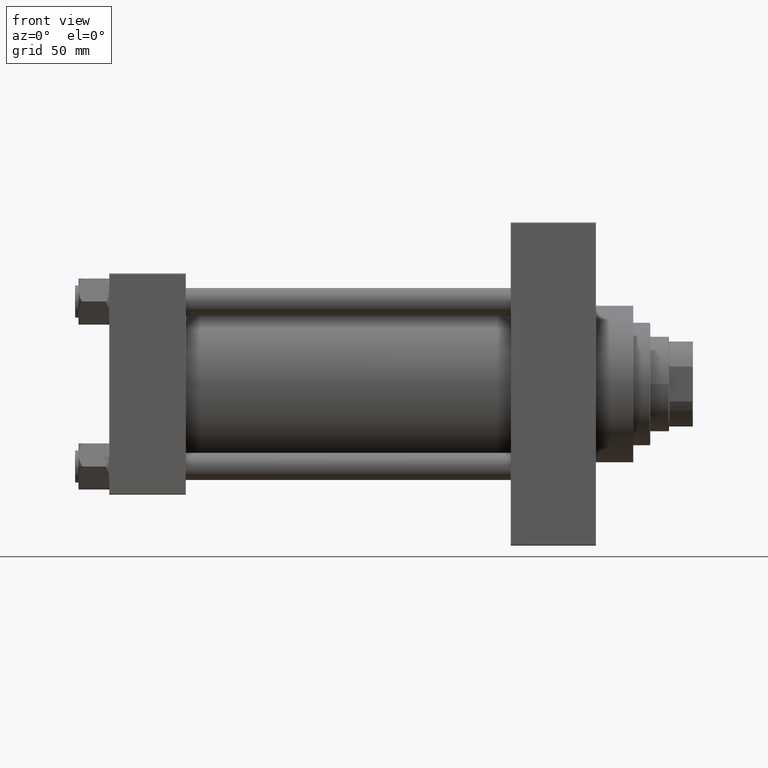
[diagram: clean part render]
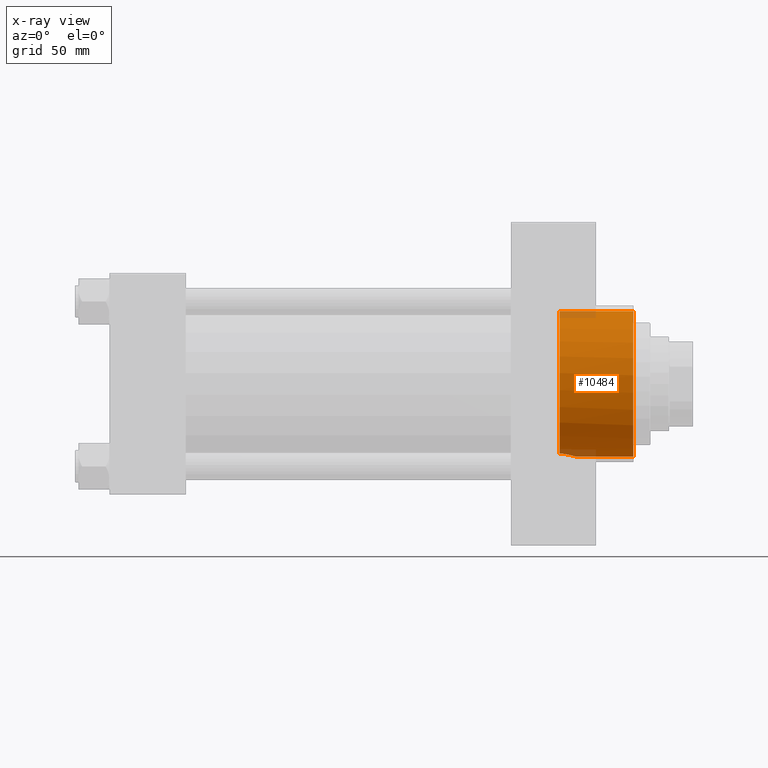
[diagram: x-ray — body ghosted, one internal face saturated and labeled with its STEP entity id]
A machine part, front view, then the same camera in x-ray: the body is ghosted and one INTERNAL B-rep face — a face not visible from any outside direction — is saturated and labeled: STEP entity #10484.
In plain terms, the highlighted cylindrical surface (partial cylindrical patch) has radius 42.75 mm, axis along (1, 0, 0).
Its self-contained STEP definition (entity closure, byte-faithful):
#338 = DIRECTION ( 'NONE',  ( 1.000000000000000000, -0.000000000000000000, -0.000000000000000000 ) ) ;
#759 = CARTESIAN_POINT ( 'NONE',  ( 271.1575723231069333, -8.490431257591556147, -41.90230994099356820 ) ) ;
#984 = CARTESIAN_POINT ( 'NONE',  ( 273.9325276923766523, -2.832175481623206093, -42.66183901135580925 ) ) ;
#993 = CARTESIAN_POINT ( 'NONE',  ( 308.0000000000000000, 0.000000000000000000, -42.75000000000000000 ) ) ;
#1190 = CARTESIAN_POINT ( 'NONE',  ( 264.7399999999999523, 5.235365066354935472E-15, 42.75000000000000000 ) ) ;
#2878 = CIRCLE ( 'NONE', #33738, 42.75000000000000000 ) ;
#3488 = EDGE_CURVE ( 'NONE', #40683, #3669, #36048, .T. ) ;
#3604 = CARTESIAN_POINT ( 'NONE',  ( 264.7399999999999523, -12.67993690836039988, -40.82623788692756506 ) ) ;
#3669 = VERTEX_POINT ( 'NONE', #3604 ) ;
#3971 = EDGE_CURVE ( 'NONE', #40683, #39427, #47672, .T. ) ;
#4368 = CARTESIAN_POINT ( 'NONE',  ( 273.2993960643597120, -4.860054019011722737, -42.47412520213219977 ) ) ;
#4546 = FACE_OUTER_BOUND ( 'NONE', #26610, .T. ) ;
#4605 = VECTOR ( 'NONE', #338, 1000.000000000000000 ) ;
#4835 = CARTESIAN_POINT ( 'NONE',  ( 272.8678695714942819, -5.834913689629384947, -42.35109966501105561 ) ) ;
#5109 = VECTOR ( 'NONE', #22800, 1000.000000000000000 ) ;
#5786 = ORIENTED_EDGE ( 'NONE', *, *, #45308, .T. ) ;
#7766 = CARTESIAN_POINT ( 'NONE',  ( 273.4260137807293631, -4.526382623994734899, -42.51103856060491637 ) ) ;
#7992 = CARTESIAN_POINT ( 'NONE',  ( 274.1474619350562421, -1.428652546488345498, -42.72761509841831895 ) ) ;
#8227 = CARTESIAN_POINT ( 'NONE',  ( 264.7399999999999523, -12.67993690836039988, -40.82623788692756506 ) ) ;
#8695 = DIRECTION ( 'NONE',  ( 1.000000000000000000, 0.000000000000000000, 0.000000000000000000 ) ) ;
#10484 = ADVANCED_FACE ( 'NONE', ( #4546 ), #19501, .F. ) ;
#11849 = CARTESIAN_POINT ( 'NONE',  ( 266.0881855045064412, -12.22213168823646612, -40.96686556097020571 ) ) ;
#12714 = DIRECTION ( 'NONE',  ( 1.000000000000000000, -0.000000000000000000, -0.000000000000000000 ) ) ;
#13225 = ORIENTED_EDGE ( 'NONE', *, *, #3488, .F. ) ;
#15256 = AXIS2_PLACEMENT_3D ( 'NONE', #23184, #41981, #19097 ) ;
#15338 = LINE ( 'NONE', #44782, #5109 ) ;
#15710 = CARTESIAN_POINT ( 'NONE',  ( 272.0015928053663856, -7.364010740347008976, -42.11487085516266404 ) ) ;
#15943 = CARTESIAN_POINT ( 'NONE',  ( 273.0198534454123092, -5.515287097378211101, -42.39402133541479856 ) ) ;
#15961 = ORIENTED_EDGE ( 'NONE', *, *, #17672, .T. ) ;
#16126 = B_SPLINE_CURVE_WITH_KNOTS ( 'NONE', 3,
 ( #27050, #44935, #41288, #7992, #22722, #984, #41528, #7766, #4368, #15943, #4835, #33831, #15710, #759, #34057, #30670, #30201, #33589, #19562, #11849, #45398, #8227 ),
 .UNSPECIFIED., .F., .F.,
 ( 4, 2, 2, 2, 2, 2, 2, 2, 2, 2, 4 ),
 ( 0.01702171439019724633, 0.01808348912762109545, 0.01914526386504494804, 0.02126881333989264627, 0.02233058807731647111, 0.02339236281474029594, 0.02551591228958802193, 0.02763946176443574793, 0.02976301123928347392, 0.03188656071413119991, 0.03401011018897892590 ),
 .UNSPECIFIED. ) ;
#17672 = EDGE_CURVE ( 'NONE', #39169, #3669, #16126, .T. ) ;
#19097 = DIRECTION ( 'NONE',  ( 0.000000000000000000, 0.000000000000000000, -1.000000000000000000 ) ) ;
#19275 = DIRECTION ( 'NONE',  ( 0.000000000000000000, 0.000000000000000000, -1.000000000000000000 ) ) ;
#19501 = CYLINDRICAL_SURFACE ( 'NONE', #31054, 42.75000000000000000 ) ;
#19562 = CARTESIAN_POINT ( 'NONE',  ( 267.3650373963750440, -11.60846388096256909, -41.14496498017211223 ) ) ;
#21806 = CARTESIAN_POINT ( 'NONE',  ( 308.0000000000000000, 5.235365066354935472E-15, 42.75000000000000000 ) ) ;
#22722 = CARTESIAN_POINT ( 'NONE',  ( 274.1041229325394966, -1.782171368608854056, -42.71427362908440983 ) ) ;
#22800 = DIRECTION ( 'NONE',  ( 1.000000000000000000, -0.000000000000000000, -0.000000000000000000 ) ) ;
#23184 = CARTESIAN_POINT ( 'NONE',  ( 264.7399999999999523, 0.000000000000000000, 0.000000000000000000 ) ) ;
#23834 = CARTESIAN_POINT ( 'NONE',  ( 264.7399999999999523, 0.000000000000000000, 0.000000000000000000 ) ) ;
#23900 = DIRECTION ( 'NONE',  ( 0.000000000000000000, 0.000000000000000000, -1.000000000000000000 ) ) ;
#24229 = ORIENTED_EDGE ( 'NONE', *, *, #3971, .T. ) ;
#25381 = VERTEX_POINT ( 'NONE', #993 ) ;
#26610 = EDGE_LOOP ( 'NONE', ( #13225, #24229, #5786, #39411, #15961 ) ) ;
#27050 = CARTESIAN_POINT ( 'NONE',  ( 274.2200000000000273, 8.184431891667997481E-27, -42.75000000000000000 ) ) ;
#29328 = CARTESIAN_POINT ( 'NONE',  ( 264.7399999999999523, 5.235365066354935472E-15, 42.75000000000000000 ) ) ;
#30201 = CARTESIAN_POINT ( 'NONE',  ( 269.1351602650896098, -10.44419664956254046, -41.45664902860858803 ) ) ;
#30670 = CARTESIAN_POINT ( 'NONE',  ( 269.6754924569603418, -9.999825575006559220, -41.56700312386078622 ) ) ;
#31054 = AXIS2_PLACEMENT_3D ( 'NONE', #23834, #12714, #19275 ) ;
#33589 = CARTESIAN_POINT ( 'NONE',  ( 267.9822741085592384, -11.24766306689396522, -41.24590971077734025 ) ) ;
#33738 = AXIS2_PLACEMENT_3D ( 'NONE', #42239, #8695, #23900 ) ;
#33831 = CARTESIAN_POINT ( 'NONE',  ( 272.3763861193418734, -6.770732795595021614, -42.21512903942315376 ) ) ;
#34057 = CARTESIAN_POINT ( 'NONE',  ( 270.6852196200359799, -9.025364359016300853, -41.78941323369598848 ) ) ;
#36048 = CIRCLE ( 'NONE', #15256, 42.75000000000000000 ) ;
#39169 = VERTEX_POINT ( 'NONE', #44072 ) ;
#39411 = ORIENTED_EDGE ( 'NONE', *, *, #43373, .F. ) ;
#39427 = VERTEX_POINT ( 'NONE', #21806 ) ;
#40683 = VERTEX_POINT ( 'NONE', #1190 ) ;
#41288 = CARTESIAN_POINT ( 'NONE',  ( 274.2055487969410592, -0.7143419376948616506, -42.74552439370960144 ) ) ;
#41528 = CARTESIAN_POINT ( 'NONE',  ( 273.7629584476919149, -3.518170577613233263, -42.61034067485235255 ) ) ;
#41981 = DIRECTION ( 'NONE',  ( 1.000000000000000000, 0.000000000000000000, 0.000000000000000000 ) ) ;
#42239 = CARTESIAN_POINT ( 'NONE',  ( 308.0000000000000000, 0.000000000000000000, 0.000000000000000000 ) ) ;
#43373 = EDGE_CURVE ( 'NONE', #39169, #25381, #15338, .T. ) ;
#44072 = CARTESIAN_POINT ( 'NONE',  ( 274.2200000000000273, 8.184431891667997481E-27, -42.75000000000000000 ) ) ;
#44782 = CARTESIAN_POINT ( 'NONE',  ( 264.7399999999999523, 0.000000000000000000, -42.75000000000000000 ) ) ;
#44935 = CARTESIAN_POINT ( 'NONE',  ( 274.2200000000000273, -0.3557163794469085927, -42.75000000000001421 ) ) ;
#45308 = EDGE_CURVE ( 'NONE', #39427, #25381, #2878, .T. ) ;
#45398 = CARTESIAN_POINT ( 'NONE',  ( 265.4263400167579334, -12.47749807280260903, -40.88911195506442908 ) ) ;
#47672 = LINE ( 'NONE', #29328, #4605 ) ;